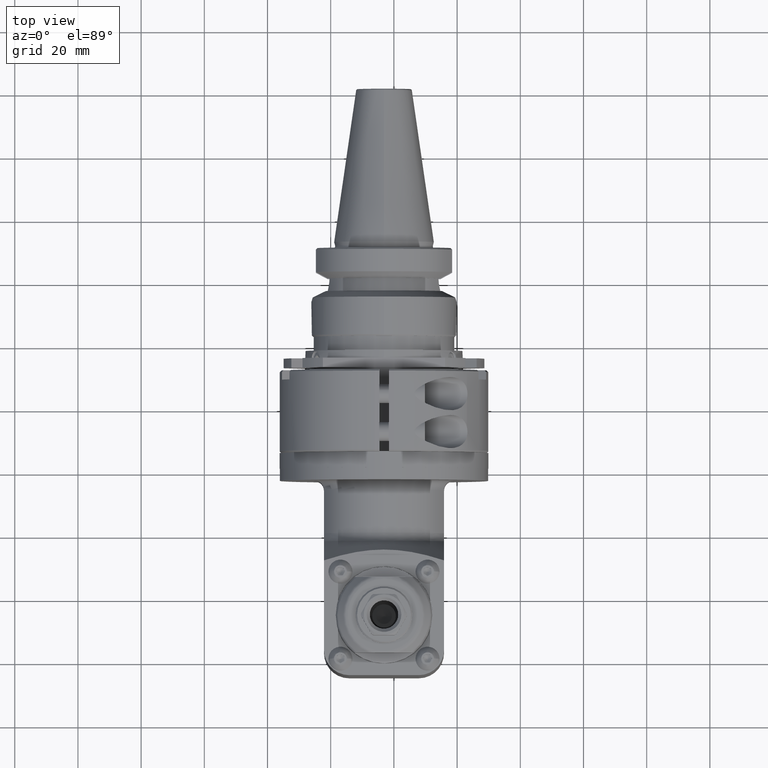
[diagram: clean part render]
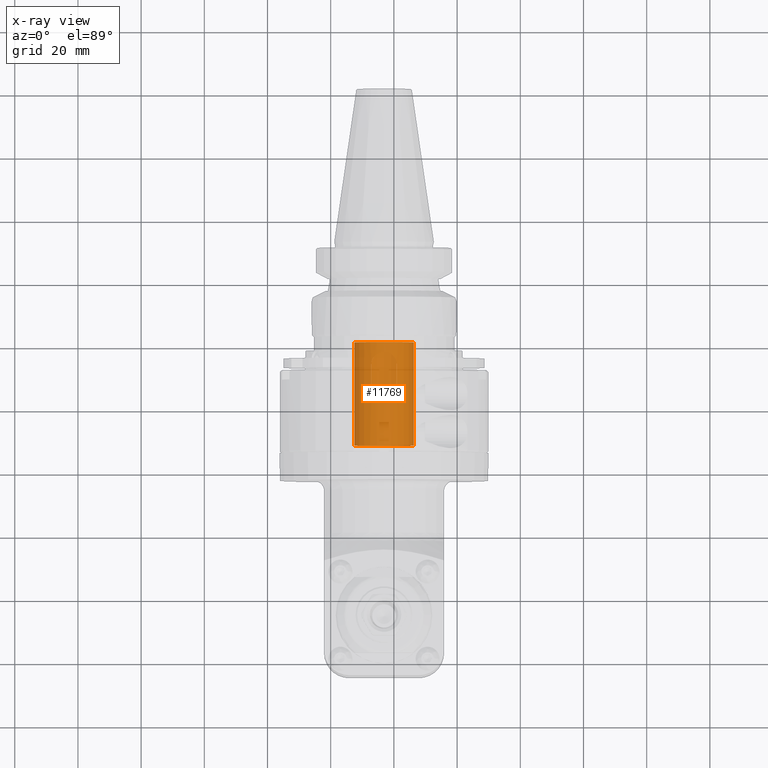
[diagram: x-ray — body ghosted, one internal face saturated and labeled with its STEP entity id]
A machine part, top view, then the same camera in x-ray: the body is ghosted and one INTERNAL B-rep face — a face not visible from any outside direction — is saturated and labeled: STEP entity #11769.
In plain terms, the highlighted cylindrical surface (bore or boss wall) has radius 9.5 mm, axis along (0, 1, 0).
Its self-contained STEP definition (entity closure, byte-faithful):
#380=B_SPLINE_CURVE_WITH_KNOTS('',3,(#20355,#20356,#20357,#20358,#20359,
#20360,#20361,#20362,#20363,#20364),.UNSPECIFIED.,.F.,.F.,(4,2,2,2,4),(0.611073018932007,
0.763744583120584,0.916416147309161,1.06928109258659,1.22214603786401),
 .UNSPECIFIED.);
#381=B_SPLINE_CURVE_WITH_KNOTS('',3,(#20368,#20369,#20370,#20371,#20372,
#20373,#20374,#20375,#20376,#20377),.UNSPECIFIED.,.F.,.F.,(4,2,2,2,4),(-1.83321905679602,
-1.68054749260744,-1.52787592841887,-1.37501098314144,-1.22214603786401),
 .UNSPECIFIED.);
#382=B_SPLINE_CURVE_WITH_KNOTS('',3,(#20380,#20381,#20382,#20383,#20384,
#20385,#20386,#20387,#20388,#20389),.UNSPECIFIED.,.F.,.F.,(4,2,2,2,4),(-2.44429207572803,
-2.2914271304506,-2.13856218517318,-1.9858906209846,-1.83321905679602),
 .UNSPECIFIED.);
#383=B_SPLINE_CURVE_WITH_KNOTS('',3,(#20392,#20393,#20394,#20395,#20396,
#20397,#20398,#20399,#20400,#20401),.UNSPECIFIED.,.F.,.F.,(4,2,2,2,4),(0.,
0.152864945277426,0.305729890554852,0.458401454743429,0.611073018932007),
 .UNSPECIFIED.);
#1151=LINE('',#20353,#2016);
#1152=LINE('',#20366,#2017);
#1153=LINE('',#20378,#2018);
#1154=LINE('',#20391,#2019);
#2016=VECTOR('',#15978,9.5);
#2017=VECTOR('',#15979,5.999999999984);
#2018=VECTOR('',#15980,9.5);
#2019=VECTOR('',#15981,6.);
#2331=CYLINDRICAL_SURFACE('',#12996,9.5);
#3033=FACE_OUTER_BOUND('',#3842,.T.);
#3842=EDGE_LOOP('',(#10004,#10005,#10006,#10007,#10008,#10009,#10010,#10011,
#10012,#10013,#10014,#10015,#10016));
#4518=CIRCLE('',#12994,9.5);
#4519=CIRCLE('',#12995,9.5);
#4520=CIRCLE('',#12997,9.5);
#5542=VERTEX_POINT('',#20344);
#5543=VERTEX_POINT('',#20345);
#5544=VERTEX_POINT('',#20350);
#5545=VERTEX_POINT('',#20352);
#5546=VERTEX_POINT('',#20354);
#5547=VERTEX_POINT('',#20365);
#5548=VERTEX_POINT('',#20367);
#5549=VERTEX_POINT('',#20379);
#5550=VERTEX_POINT('',#20390);
#7081=EDGE_CURVE('',#5542,#5543,#4518,.T.);
#7082=EDGE_CURVE('',#5543,#5542,#4519,.T.);
#7084=EDGE_CURVE('',#5544,#5544,#4520,.T.);
#7085=EDGE_CURVE('',#5544,#5545,#1151,.T.);
#7086=EDGE_CURVE('',#5545,#5546,#380,.T.);
#7087=EDGE_CURVE('',#5546,#5547,#1152,.T.);
#7088=EDGE_CURVE('',#5547,#5548,#381,.F.);
#7089=EDGE_CURVE('',#5548,#5543,#1153,.T.);
#7090=EDGE_CURVE('',#5548,#5549,#382,.F.);
#7091=EDGE_CURVE('',#5549,#5550,#1154,.T.);
#7092=EDGE_CURVE('',#5550,#5545,#383,.T.);
#10004=ORIENTED_EDGE('',*,*,#7084,.F.);
#10005=ORIENTED_EDGE('',*,*,#7085,.T.);
#10006=ORIENTED_EDGE('',*,*,#7086,.T.);
#10007=ORIENTED_EDGE('',*,*,#7087,.T.);
#10008=ORIENTED_EDGE('',*,*,#7088,.T.);
#10009=ORIENTED_EDGE('',*,*,#7089,.T.);
#10010=ORIENTED_EDGE('',*,*,#7081,.F.);
#10011=ORIENTED_EDGE('',*,*,#7082,.F.);
#10012=ORIENTED_EDGE('',*,*,#7089,.F.);
#10013=ORIENTED_EDGE('',*,*,#7090,.T.);
#10014=ORIENTED_EDGE('',*,*,#7091,.T.);
#10015=ORIENTED_EDGE('',*,*,#7092,.T.);
#10016=ORIENTED_EDGE('',*,*,#7085,.F.);
#11769=ADVANCED_FACE('',(#3033),#2331,.F.);
#12994=AXIS2_PLACEMENT_3D('',#20346,#15969,#15970);
#12995=AXIS2_PLACEMENT_3D('',#20347,#15971,#15972);
#12996=AXIS2_PLACEMENT_3D('',#20349,#15974,#15975);
#12997=AXIS2_PLACEMENT_3D('',#20351,#15976,#15977);
#15969=DIRECTION('center_axis',(0.,-1.,0.));
#15970=DIRECTION('ref_axis',(0.,0.,-1.));
#15971=DIRECTION('center_axis',(0.,-1.,0.));
#15972=DIRECTION('ref_axis',(0.,0.,-1.));
#15974=DIRECTION('center_axis',(0.,1.,0.));
#15975=DIRECTION('ref_axis',(0.,0.,-1.));
#15976=DIRECTION('center_axis',(0.,1.,0.));
#15977=DIRECTION('ref_axis',(0.,0.,1.));
#15978=DIRECTION('',(0.,1.,0.));
#15979=DIRECTION('',(0.,1.,0.));
#15980=DIRECTION('',(0.,1.,0.));
#15981=DIRECTION('',(0.,-1.,0.));
#20344=CARTESIAN_POINT('',(1.648681191568E-13,36.13397459622,-74.5));
#20345=CARTESIAN_POINT('',(1.6603153361599E-13,36.13397459622,-55.5));
#20346=CARTESIAN_POINT('Origin',(1.648681191568E-13,36.13397459622,-65.));
#20347=CARTESIAN_POINT('Origin',(1.648681191568E-13,36.13397459622,-65.));
#20349=CARTESIAN_POINT('Origin',(1.648681191568E-13,-9.0000024,-65.));
#20350=CARTESIAN_POINT('',(1.648681191568E-13,3.5,-55.5));
#20351=CARTESIAN_POINT('Origin',(1.648681191568E-13,3.5,-65.));
#20352=CARTESIAN_POINT('',(1.6565799320353E-13,19.,-55.5));
#20353=CARTESIAN_POINT('',(1.6603153361599E-13,-9.0000024,-55.5));
#20354=CARTESIAN_POINT('',(4.00000000000017,22.99999999998,-56.38315603019));
#20355=CARTESIAN_POINT('Ctrl Pts',(1.65145674912992E-13,19.,-55.5));
#20356=CARTESIAN_POINT('Ctrl Pts',(0.50890521396209,19.,-55.5));
#20357=CARTESIAN_POINT('Ctrl Pts',(1.04755429554466,19.1029898727392,-55.5447825003432));
#20358=CARTESIAN_POINT('Ctrl Pts',(2.03138783979636,19.5132363409626,-55.7063477916657));
#20359=CARTESIAN_POINT('Ctrl Pts',(2.47702020915113,19.8201659596586,-55.8212272835674));
#20360=CARTESIAN_POINT('Ctrl Pts',(3.18027914911037,20.5234248996178,-56.0405543863868));
#20361=CARTESIAN_POINT('Ctrl Pts',(3.48687315200712,20.9688920978107,-56.1602482308029));
#20362=CARTESIAN_POINT('Ctrl Pts',(3.89686014090278,21.9520686593089,-56.3331677888983));
#20363=CARTESIAN_POINT('Ctrl Pts',(4.00000000000017,22.4904501824086,-56.3831560301929));
#20364=CARTESIAN_POINT('Ctrl Pts',(4.00000000000017,23.,-56.3831560301929));
#20365=CARTESIAN_POINT('',(4.00000000000017,28.99999999997,-56.38315603019));
#20366=CARTESIAN_POINT('',(4.00000000000017,22.99999999998,-56.38315603019));
#20367=CARTESIAN_POINT('',(1.65866160020647E-13,33.,-55.5));
#20368=CARTESIAN_POINT('Ctrl Pts',(1.64868119156836E-13,33.,-55.5));
#20369=CARTESIAN_POINT('Ctrl Pts',(0.508905213962089,33.,-55.5));
#20370=CARTESIAN_POINT('Ctrl Pts',(1.04755429554466,32.8970101272608,-55.5447825003432));
#20371=CARTESIAN_POINT('Ctrl Pts',(2.03138783979635,32.4867636590374,-55.7063477916657));
#20372=CARTESIAN_POINT('Ctrl Pts',(2.47702020915113,32.1798340403414,-55.8212272835674));
#20373=CARTESIAN_POINT('Ctrl Pts',(3.18027914911038,31.4765751003822,-56.0405543863868));
#20374=CARTESIAN_POINT('Ctrl Pts',(3.48687315200711,31.0311079021893,-56.1602482308029));
#20375=CARTESIAN_POINT('Ctrl Pts',(3.89686014090278,30.0479313406911,-56.3331677888983));
#20376=CARTESIAN_POINT('Ctrl Pts',(4.00000000000017,29.5095498175914,-56.3831560301929));
#20377=CARTESIAN_POINT('Ctrl Pts',(4.00000000000017,29.,-56.3831560301929));
#20378=CARTESIAN_POINT('',(1.6603153361599E-13,-9.0000024,-55.5));
#20379=CARTESIAN_POINT('',(-3.99999999999984,29.,-56.38315603019));
#20380=CARTESIAN_POINT('Ctrl Pts',(-3.99999999999984,29.,-56.383156030193));
#20381=CARTESIAN_POINT('Ctrl Pts',(-3.99999999999984,29.5095498175914,-56.383156030193));
#20382=CARTESIAN_POINT('Ctrl Pts',(-3.89686014090245,30.0479313406911,-56.3331677888983));
#20383=CARTESIAN_POINT('Ctrl Pts',(-3.48687315200679,31.0311079021893,-56.1602482308029));
#20384=CARTESIAN_POINT('Ctrl Pts',(-3.18027914911005,31.4765751003822,-56.0405543863868));
#20385=CARTESIAN_POINT('Ctrl Pts',(-2.4770202091508,32.1798340403414,-55.8212272835674));
#20386=CARTESIAN_POINT('Ctrl Pts',(-2.03138783979602,32.4867636590374,-55.7063477916657));
#20387=CARTESIAN_POINT('Ctrl Pts',(-1.04755429554432,32.8970101272608,-55.5447825003432));
#20388=CARTESIAN_POINT('Ctrl Pts',(-0.508905213961758,33.,-55.5));
#20389=CARTESIAN_POINT('Ctrl Pts',(1.65700786425305E-13,33.,-55.5));
#20390=CARTESIAN_POINT('',(-3.99999999999984,23.,-56.38315603019));
#20391=CARTESIAN_POINT('',(-3.99999999999984,29.,-56.38315603019));
#20392=CARTESIAN_POINT('Ctrl Pts',(-3.99999999999983,23.,-56.383156030193));
#20393=CARTESIAN_POINT('Ctrl Pts',(-3.99999999999983,22.4904501824086,-56.383156030193));
#20394=CARTESIAN_POINT('Ctrl Pts',(-3.89686014090245,21.9520686593089,-56.3331677888983));
#20395=CARTESIAN_POINT('Ctrl Pts',(-3.48687315200679,20.9688920978107,-56.1602482308029));
#20396=CARTESIAN_POINT('Ctrl Pts',(-3.18027914911005,20.5234248996178,-56.0405543863868));
#20397=CARTESIAN_POINT('Ctrl Pts',(-2.4770202091508,19.8201659596586,-55.8212272835674));
#20398=CARTESIAN_POINT('Ctrl Pts',(-2.03138783979603,19.5132363409626,-55.7063477916657));
#20399=CARTESIAN_POINT('Ctrl Pts',(-1.04755429554433,19.1029898727392,-55.5447825003432));
#20400=CARTESIAN_POINT('Ctrl Pts',(-0.50890521396176,19.,-55.5));
#20401=CARTESIAN_POINT('Ctrl Pts',(1.65006897034914E-13,19.,-55.5));